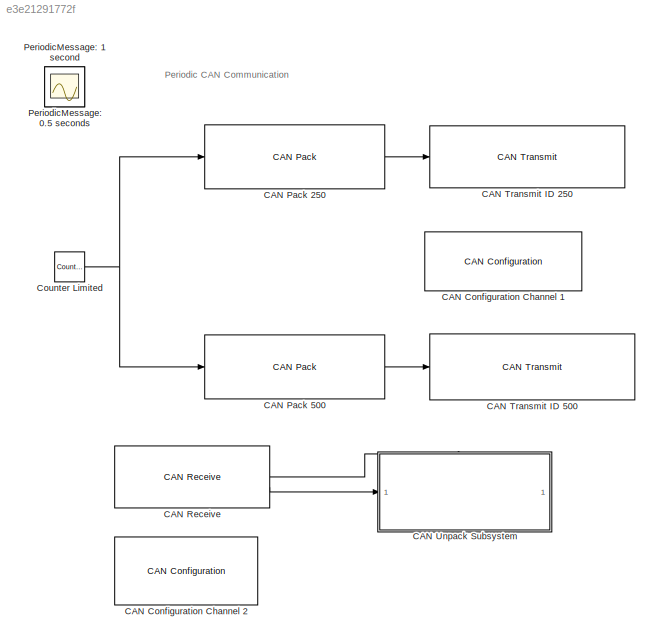
MODEL slx_e3e21291772f
KIND model
CONFIG AbsTol = auto
CONFIG EnableMultiTasking = on
CONFIG FixedStep = auto
CONFIG MaxStep = auto
CONFIG MinStep = auto
CONFIG RelTol = 1e-3
CONFIG SampleTimeConstraint = Unconstrained
CONFIG SolverName = FixedStepDiscrete
CONFIG StartTime = 0.0
CONFIG StopTime = 3000
BLOCK [Reference] CAN Configuration Channel 1  REF=canlib/CAN Configuration
  SourceBlock = canlib/CAN Configuration
  SourceType = CAN Configuration
BLOCK [Reference] CAN Configuration Channel 2  REF=canlib/CAN Configuration
  SourceBlock = canlib/CAN Configuration
  SourceType = CAN Configuration
BLOCK [Reference] CAN Pack 250  REF=canmsglib/CAN Pack
  SourceBlock = canmsglib/CAN Pack
  SourceType = CAN Pack
BLOCK [Reference] CAN Pack 500  REF=canmsglib/CAN Pack
  SourceBlock = canmsglib/CAN Pack
  SourceType = CAN Pack
BLOCK [Reference] CAN Receive  REF=canlib/CAN Receive
  SourceBlock = canlib/CAN Receive
  SourceType = CAN Receive
BLOCK [Reference] CAN Transmit ID 250  REF=canlib/CAN Transmit
  SourceBlock = canlib/CAN Transmit
  SourceType = CAN Transmit
BLOCK [Reference] CAN Transmit ID 500  REF=canlib/CAN Transmit
  SourceBlock = canlib/CAN Transmit
  SourceType = CAN Transmit
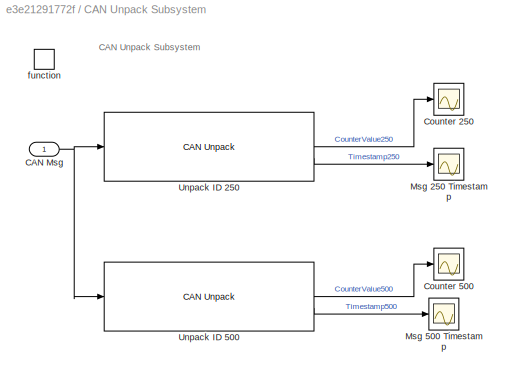
BLOCK [SubSystem] CAN Unpack Subsystem
  TreatAsAtomicUnit = on
BLOCK [Inport] CAN Unpack Subsystem/CAN Msg
BLOCK [Scope] CAN Unpack Subsystem/Counter 250
  Floating = off
  NumInputPorts = 1
  ScopeSpecificationString = Simulink.scopes.TimeScopeBlockCfg('CurrentConfiguration', extmgr.ConfigurationSet(extmgr.Configuration('Core','General UI',true),extmgr.Configuration('Core','Source UI',true),extmgr.Configuration('Sources','WiredSimulink',true,'DataLoggingVariableName','ScopeData2','DataLoggingSaveFormat','StructureWithTime','DataLoggingLimitDataPoints',true,'DataLoggingDecimation','1','DataLoggingDecimateData',tr...<+1789ch>
BLOCK [Scope] CAN Unpack Subsystem/Counter 500
  Floating = off
  NumInputPorts = 1
  ScopeSpecificationString = Simulink.scopes.TimeScopeBlockCfg('CurrentConfiguration', extmgr.ConfigurationSet(extmgr.Configuration('Core','General UI',true),extmgr.Configuration('Core','Source UI',true),extmgr.Configuration('Sources','WiredSimulink',true,'DataLoggingVariableName','ScopeData1','DataLoggingSaveFormat','StructureWithTime','DataLoggingLimitDataPoints',true,'DataLoggingDecimation','1','DataLoggingDecimateData',tr...<+1790ch>
BLOCK [Scope] CAN Unpack Subsystem/Msg 250 Timestamp
  Floating = off
  NumInputPorts = 1
  ScopeSpecificationString = Simulink.scopes.TimeScopeBlockCfg('CurrentConfiguration', extmgr.ConfigurationSet(extmgr.Configuration('Core','General UI',true),extmgr.Configuration('Core','Source UI',true),extmgr.Configuration('Sources','WiredSimulink',true,'DataLoggingSaveFormat','StructureWithTime','DataLoggingLimitDataPoints',true,'DataLoggingDecimation','1','DataLoggingDecimateData',true),extmgr.Configuration('Visuals','Tim...<+1741ch>
BLOCK [Scope] CAN Unpack Subsystem/Msg 500 Timestamp
  Floating = off
  NumInputPorts = 1
  ScopeSpecificationString = Simulink.scopes.TimeScopeBlockCfg('CurrentConfiguration', extmgr.ConfigurationSet(extmgr.Configuration('Core','General UI',true),extmgr.Configuration('Core','Source UI',true),extmgr.Configuration('Sources','WiredSimulink',true,'DataLoggingVariableName','ScopeData3','DataLoggingSaveFormat','StructureWithTime','DataLoggingMaxPoints','3000','DataLoggingLimitDataPoints',true,'DataLoggingDecimation','1...<+1883ch>
BLOCK [Reference] CAN Unpack Subsystem/Unpack ID 250  REF=canmsglib/CAN Unpack
  SourceBlock = canmsglib/CAN Unpack
  SourceType = CAN Unpack
BLOCK [Reference] CAN Unpack Subsystem/Unpack ID 500  REF=canmsglib/CAN Unpack
  SourceBlock = canmsglib/CAN Unpack
  SourceType = CAN Unpack
BLOCK [TriggerPort] CAN Unpack Subsystem/function
  StatesWhenEnabling = held
  TriggerType = function-call
  VariantControl = Variant
BLOCK [Reference] Counter Limited  REF=simulink/Sources/Counter
Limited
  SourceBlock = simulink/Sources/Counter\nLimited
  SourceType = Counter Limited
BLOCK [Scope] PeriodicMessage: 0.5 seconds
  Floating = off
  IOType = viewer
  NumInputPorts = 1
  ScopeSpecificationString = Simulink.scopes.TimeScopeBlockCfg('CurrentConfiguration', extmgr.ConfigurationSet(extmgr.Configuration('Core','General UI',true),extmgr.Configuration('Core','Source UI',true),extmgr.Configuration('Sources','WiredSimulink',true,'DataLoggingVariableName','ScopeData1','DataLoggingSaveFormat','Array','DataLoggingMaxPoints','7500','DataLoggingLimitDataPoints',true,'DataLoggingDecimation','1','DataLoggi...<+2568ch>
BLOCK [Scope] PeriodicMessage: 1 second
  Floating = off
  IOType = viewer
  NumInputPorts = 1
  ScopeSpecificationString = Simulink.scopes.TimeScopeBlockCfg('CurrentConfiguration', extmgr.ConfigurationSet(extmgr.Configuration('Core','General UI',true),extmgr.Configuration('Core','Source UI',true),extmgr.Configuration('Sources','WiredSimulink',true,'DataLoggingSaveFormat','Array','DataLoggingMaxPoints','7500','DataLoggingLimitDataPoints',true,'DataLoggingDecimation','1','DataLoggingDecimateData',true),extmgr.Configurat...<+2526ch>
ANNOTATION (root): Periodic CAN Communication
ANNOTATION CAN Unpack Subsystem: CAN Unpack Subsystem
LINE CAN Pack 250:1 -> CAN Transmit ID 250:1
LINE CAN Pack 500:1 -> CAN Transmit ID 500:1
LINE CAN Receive:1 -> CAN Unpack Subsystem:trigger
LINE CAN Receive:2 -> CAN Unpack Subsystem:1
NET CAN Unpack Subsystem/CAN Msg:1 -> CAN Unpack Subsystem/Unpack ID 250:1, CAN Unpack Subsystem/Unpack ID 500:1
LINE CAN Unpack Subsystem/Unpack ID 250:1 -> CAN Unpack Subsystem/Counter 250:1
LINE CAN Unpack Subsystem/Unpack ID 250:2 -> CAN Unpack Subsystem/Msg 250 Timestamp:1
LINE CAN Unpack Subsystem/Unpack ID 500:1 -> CAN Unpack Subsystem/Counter 500:1
LINE CAN Unpack Subsystem/Unpack ID 500:2 -> CAN Unpack Subsystem/Msg 500 Timestamp:1
NET Counter Limited:1 -> CAN Pack 250:1, CAN Pack 500:1
note: NET lines group one-source signal fan-out (src -> all destinations, sorted); 1:1 wires keep LINE
